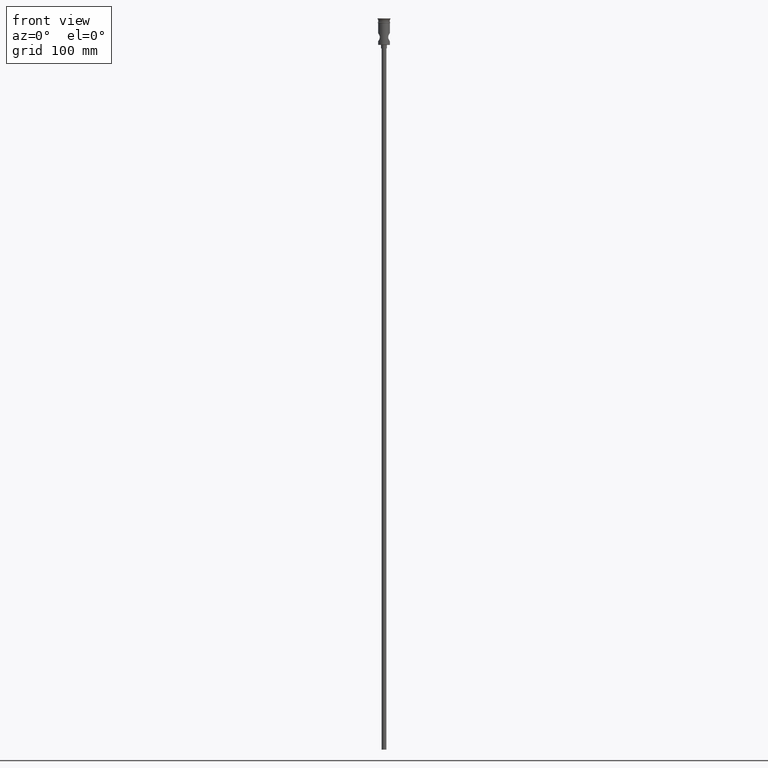
[diagram: clean part render]
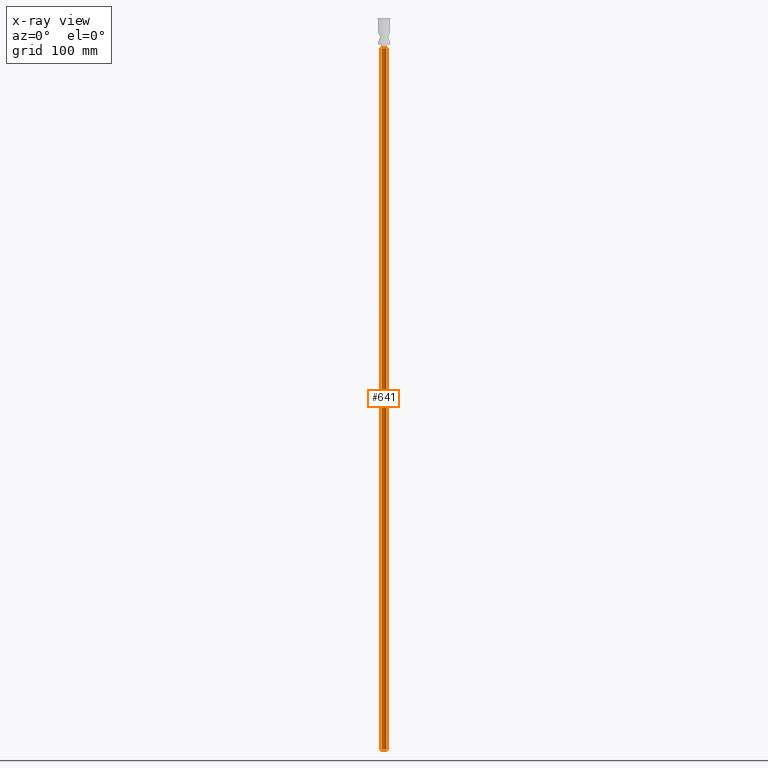
[diagram: x-ray — body ghosted, one internal face saturated and labeled with its STEP entity id]
A machine part, front view, then the same camera in x-ray: the body is ghosted and one INTERNAL B-rep face — a face not visible from any outside direction — is saturated and labeled: STEP entity #641.
In plain terms, the highlighted cylindrical surface (edge-blend (fillet) strip) has radius 2 mm, axis along (-0, -0, 1).
Its self-contained STEP definition (entity closure, byte-faithful):
#19 = AXIS2_PLACEMENT_3D ( 'NONE', #80, #295, #829 ) ;
#20 = CARTESIAN_POINT ( 'NONE',  ( -2.000000000000000000, 2.449293598294706414E-16, -622.4999999999998863 ) ) ;
#40 = EDGE_CURVE ( 'NONE', #328, #964, #695, .T. ) ;
#41 = DIRECTION ( 'NONE',  ( -0.000000000000000000, -0.000000000000000000, 1.000000000000000000 ) ) ;
#50 = DIRECTION ( 'NONE',  ( -0.000000000000000000, -0.000000000000000000, 1.000000000000000000 ) ) ;
#80 = CARTESIAN_POINT ( 'NONE',  ( 0.000000000000000000, 0.000000000000000000, -622.4999999999998863 ) ) ;
#120 = CARTESIAN_POINT ( 'NONE',  ( 2.000000000000000000, 0.000000000000000000, -622.4999999999998863 ) ) ;
#166 = CIRCLE ( 'NONE', #19, 2.000000000000000000 ) ;
#178 = FACE_OUTER_BOUND ( 'NONE', #1176, .T. ) ;
#185 = CARTESIAN_POINT ( 'NONE',  ( 0.000000000000000000, 0.000000000000000000, -622.4999999999998863 ) ) ;
#251 = DIRECTION ( 'NONE',  ( -1.000000000000000000, 0.000000000000000000, 0.000000000000000000 ) ) ;
#271 = ORIENTED_EDGE ( 'NONE', *, *, #506, .T. ) ;
#284 = CIRCLE ( 'NONE', #1297, 2.000000000000000000 ) ;
#295 = DIRECTION ( 'NONE',  ( 0.000000000000000000, 0.000000000000000000, -1.000000000000000000 ) ) ;
#328 = VERTEX_POINT ( 'NONE', #770 ) ;
#441 = ORIENTED_EDGE ( 'NONE', *, *, #1023, .F. ) ;
#492 = CARTESIAN_POINT ( 'NONE',  ( 2.000000000000000000, 0.000000000000000000, -25.50000000000000000 ) ) ;
#506 = EDGE_CURVE ( 'NONE', #964, #1442, #284, .T. ) ;
#514 = EDGE_CURVE ( 'NONE', #1277, #1442, #905, .T. ) ;
#570 = VECTOR ( 'NONE', #1266, 1000.000000000000000 ) ;
#623 = CYLINDRICAL_SURFACE ( 'NONE', #657, 2.000000000000000000 ) ;
#641 = ADVANCED_FACE ( 'NONE', ( #178 ), #623, .T. ) ;
#655 = ORIENTED_EDGE ( 'NONE', *, *, #514, .F. ) ;
#657 = AXIS2_PLACEMENT_3D ( 'NONE', #185, #50, #831 ) ;
#695 = LINE ( 'NONE', #20, #570 ) ;
#770 = CARTESIAN_POINT ( 'NONE',  ( -2.000000000000000000, 2.449293598294706414E-16, -622.4999999999998863 ) ) ;
#829 = DIRECTION ( 'NONE',  ( -1.000000000000000000, 0.000000000000000000, 0.000000000000000000 ) ) ;
#831 = DIRECTION ( 'NONE',  ( 1.000000000000000000, 0.000000000000000000, 0.000000000000000000 ) ) ;
#841 = VECTOR ( 'NONE', #41, 1000.000000000000000 ) ;
#905 = LINE ( 'NONE', #1257, #841 ) ;
#964 = VERTEX_POINT ( 'NONE', #1424 ) ;
#1023 = EDGE_CURVE ( 'NONE', #328, #1277, #166, .T. ) ;
#1176 = EDGE_LOOP ( 'NONE', ( #441, #1410, #271, #655 ) ) ;
#1257 = CARTESIAN_POINT ( 'NONE',  ( 2.000000000000000000, 0.000000000000000000, -622.4999999999998863 ) ) ;
#1266 = DIRECTION ( 'NONE',  ( -0.000000000000000000, -0.000000000000000000, 1.000000000000000000 ) ) ;
#1277 = VERTEX_POINT ( 'NONE', #120 ) ;
#1297 = AXIS2_PLACEMENT_3D ( 'NONE', #1367, #1373, #251 ) ;
#1367 = CARTESIAN_POINT ( 'NONE',  ( 0.000000000000000000, 0.000000000000000000, -25.50000000000000000 ) ) ;
#1373 = DIRECTION ( 'NONE',  ( 0.000000000000000000, 0.000000000000000000, -1.000000000000000000 ) ) ;
#1410 = ORIENTED_EDGE ( 'NONE', *, *, #40, .T. ) ;
#1424 = CARTESIAN_POINT ( 'NONE',  ( -2.000000000000000000, 2.449293598294706414E-16, -25.50000000000000000 ) ) ;
#1442 = VERTEX_POINT ( 'NONE', #492 ) ;